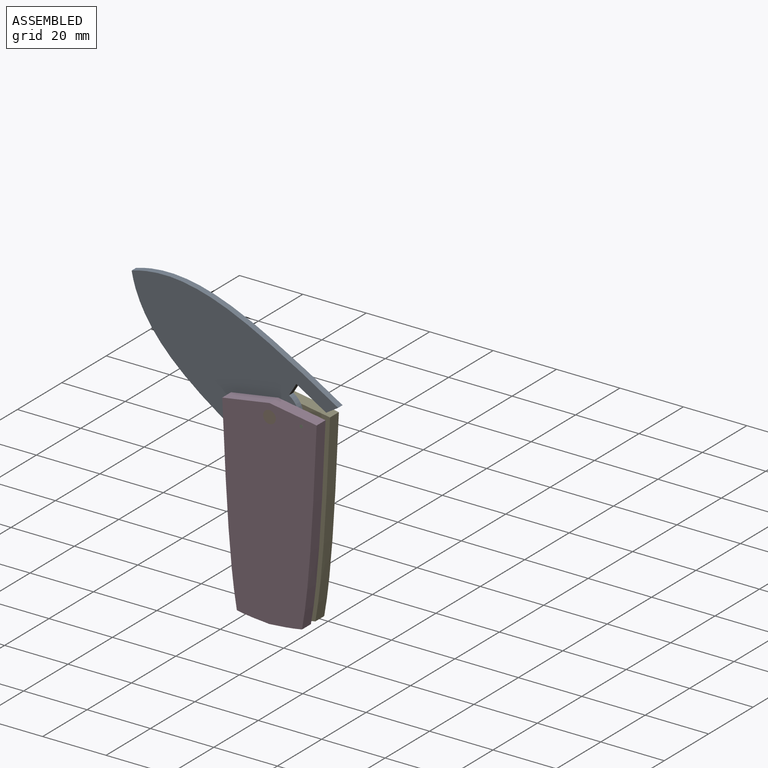
[diagram: assembled view]
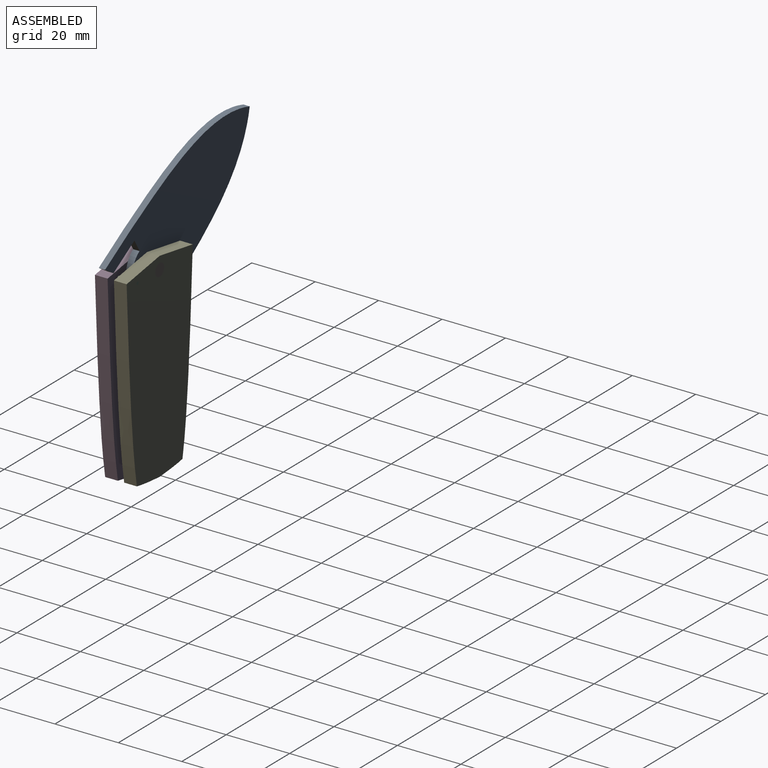
[diagram: assembled view, second angle]
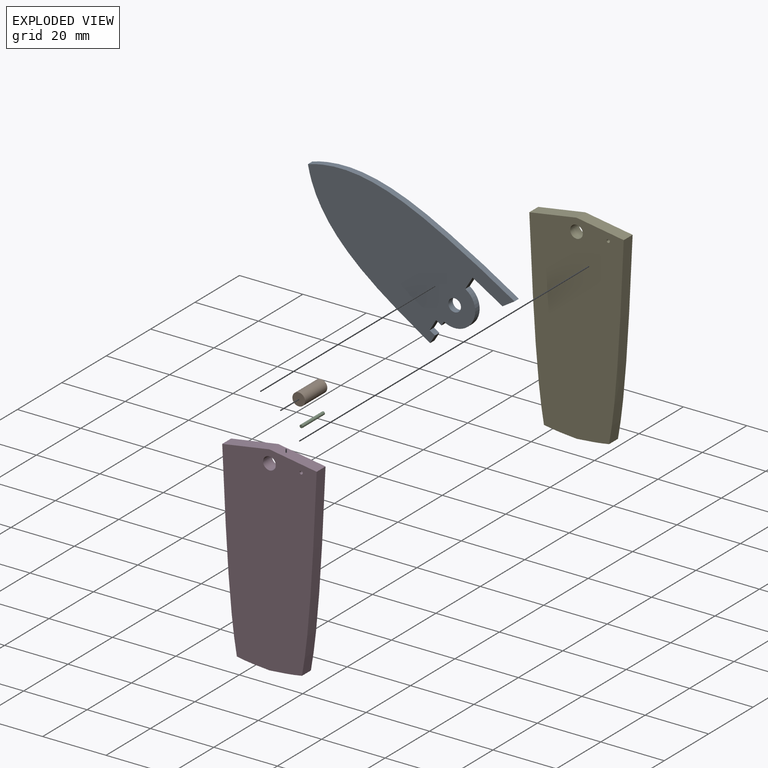
[diagram: exploded view]
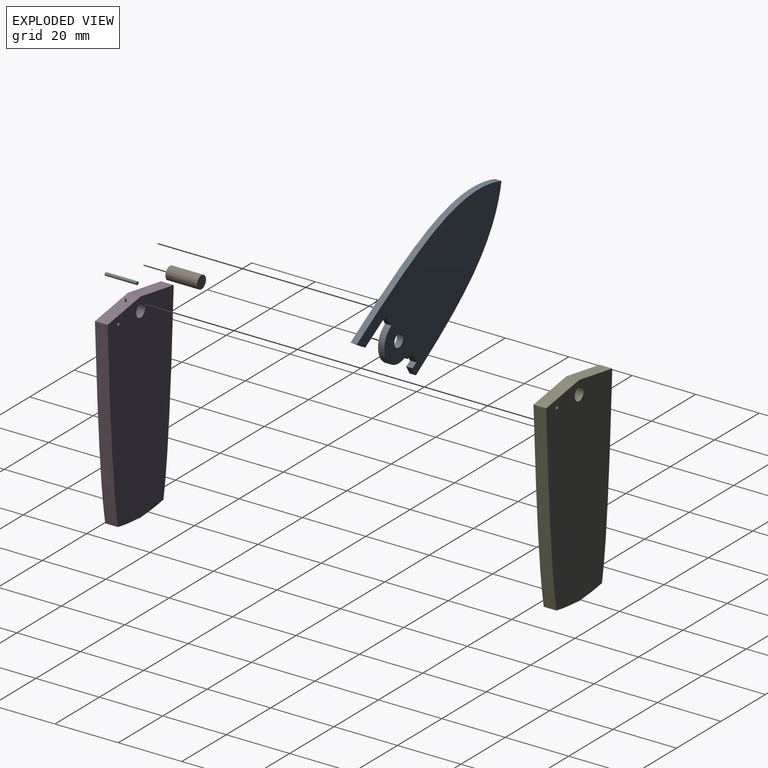
[diagram: exploded view, second angle]
ASSEMBLY  parts=5 mates=4
PART A: 15 faces, bbox 30x2x67 mm
  f0: extruded ~54x15mm, area 115.4mm2, adj f1,f11,f13,f14
  f1: plane 3x2mm, normal (0,0,-1), area 6mm2, adj f0,f2,f13,f14
  f2: plane 2x2mm, normal (1,0,0), area 4mm2, adj f1,f3,f13,f14
  f3: plane 4x2mm, normal (0,0,-1), area 8mm2, adj f2,f4,f13,f14
  f4: plane 2x2mm, normal (-1,0,0), area 4mm2, adj f3,f5,f13,f14
  f5: plane 2x1.5mm, normal (0,0,-1), area 3mm2, adj f4,f6,f13,f14
  f6: cylinder r=6.5mm len=13mm, axis (0,1,0), area 40.8mm2, adj f5,f7,f13,f14
  f7: plane 4.5x2mm, normal (0,0,-1), area 9mm2, adj f6,f8,f13,f14
  f8: plane 11x2mm, normal (-1,0,0), area 22mm2, adj f7,f9,f13,f14
  f9: plane 4x2mm, normal (-0.45,0,-0.89), area 8.9mm2, adj f8,f10,f13,f14
  f10: plane 13x2mm, normal (1,0,0), area 26mm2, adj f9,f11,f13,f14
  f11: extruded ~54x15mm, area 115.4mm2, adj f0,f10,f13,f14
  f12: cylinder r=2mm len=4mm, axis (0,1,0), area 25.1mm2, adj f13,f14
  f13: plane 67x30mm, normal (0,-1,0), area 1326.5mm2, adj f0,f1,f2,f3,f4,f5,f6,f7
  f14: plane 67x30mm, normal (0,1,0), area 1326.5mm2, adj f0,f1,f2,f3,f4,f5,f6,f7
PART B: 3 faces, bbox 4x10x4 mm
  f0: cylinder r=2mm len=10mm, axis (0,1,0), area 125.7mm2, adj f1,f2
  f1: plane 4x4mm, normal (0,-1,0), area 12.6mm2, adj f0
  f2: plane 4x4mm, normal (0,1,0), area 12.6mm2, adj f0
PART C: 3 faces, bbox 1x10x1 mm
  f0: cylinder r=0.5mm len=10mm, axis (0,1,0), area 31.4mm2, adj f1,f2
  f1: plane 1x1mm, normal (0,-1,0), area 0.8mm2, adj f0
  f2: plane 1x1mm, normal (0,1,0), area 0.8mm2, adj f0
PART D: 10 faces, bbox 29.8x4x63 mm
  f0: extruded ~10.27x4mm, area 41.4mm2, adj f1,f7,f8,f9
  f1: extruded ~10.27x4mm, area 41.4mm2, adj f0,f2,f8,f9
  f2: extruded ~59.38x4.62mm, area 238.4mm2, adj f1,f3,f8,f9
  f3: plane 14.89x4mm, normal (0.16,0,0.99), area 60.3mm2, adj f2,f4,f8,f9
  f4: plane 14.89x4mm, normal (-0.16,0,0.99), area 60.3mm2, adj f3,f7,f8,f9
  f5: cylinder r=2mm len=4mm, axis (0,1,0), area 50.3mm2, adj f8,f9
  f6: cylinder r=0.5mm len=4mm, axis (0,1,0), area 12.6mm2, adj f8,f9
  f7: extruded ~59.38x4.62mm, area 238.4mm2, adj f0,f4,f8,f9
  f8: plane 63x29.78mm, normal (0,-1,0), area 1596.9mm2, adj f0,f1,f2,f3,f4,f5,f6,f7
  f9: plane 63x29.78mm, normal (0,1,0), area 1596.9mm2, adj f0,f1,f2,f3,f4,f5,f6,f7
PART E: same geometry as D
PLACE A rot(axis=(0,-1,0),58.9deg) t=(-13.15,9.81,36.61)mm
PLACE B t=(-4.93,13.81,1.72)mm
PLACE C t=(-2.83,13.81,1.54)mm fixed
PLACE D t=(-13.15,7.81,36.61)mm
PLACE E t=(-13.15,13.81,36.61)mm
MATE revolute D.f5 <-> A.f12  axis (0,1,0) through (-13.15,7.81,36.61)mm
MATE revolute B.f0 <-> D.f5  axis (0,-1,0) through (-13.15,3.81,36.61)mm
MATE revolute E.f5 <-> A.f12  axis (0,-1,0) through (-13.15,9.81,36.61)mm
MATE fastened C.f0 <-> D.f6  axis (0,-1,0) through (-3.15,3.81,36.61)mm
